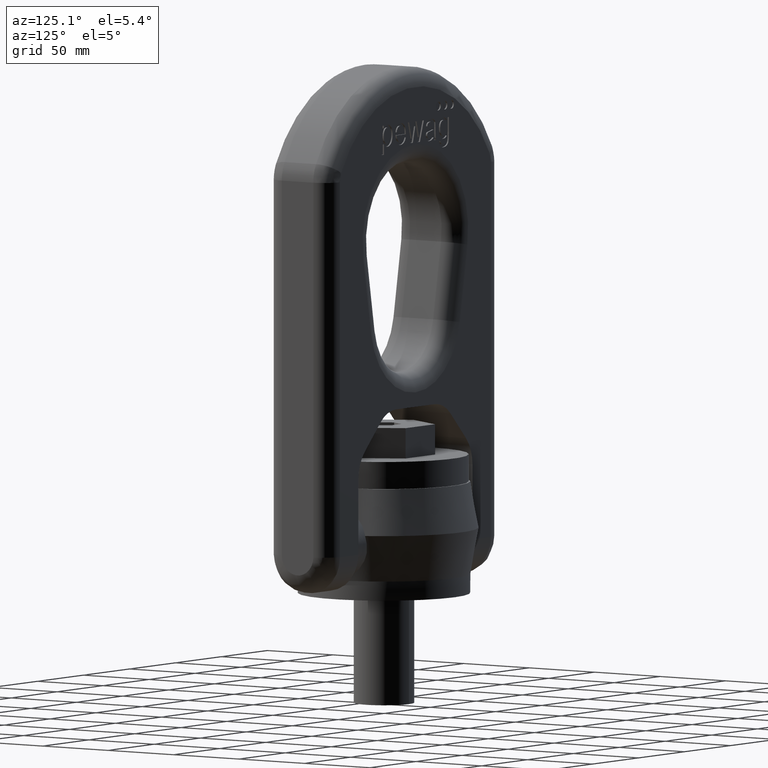
[diagram: clean part render]
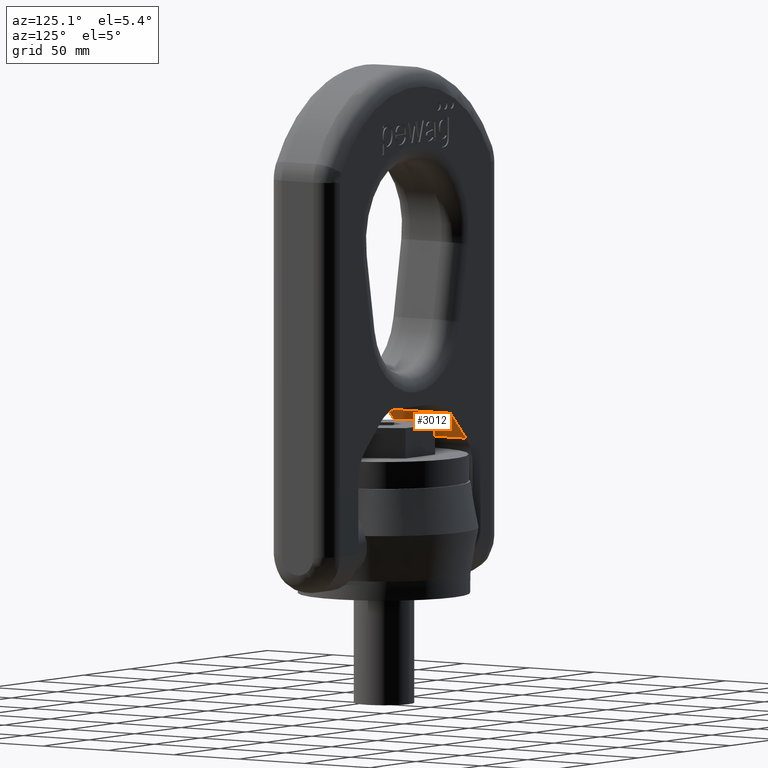
[diagram: same view with one face highlighted and labeled with its STEP entity id]
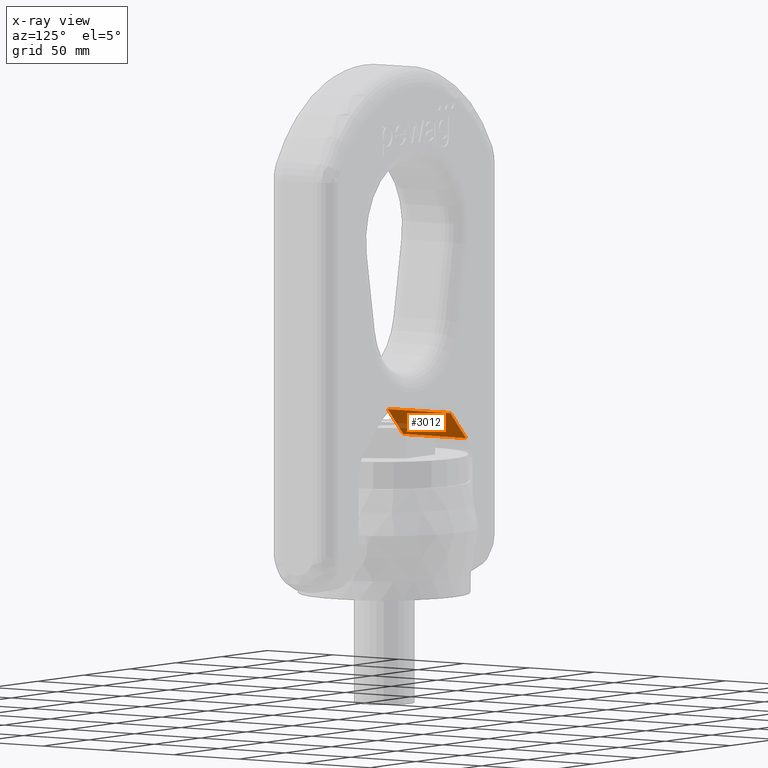
[diagram: x-ray of the same camera — body ghosted, the highlighted face saturated]
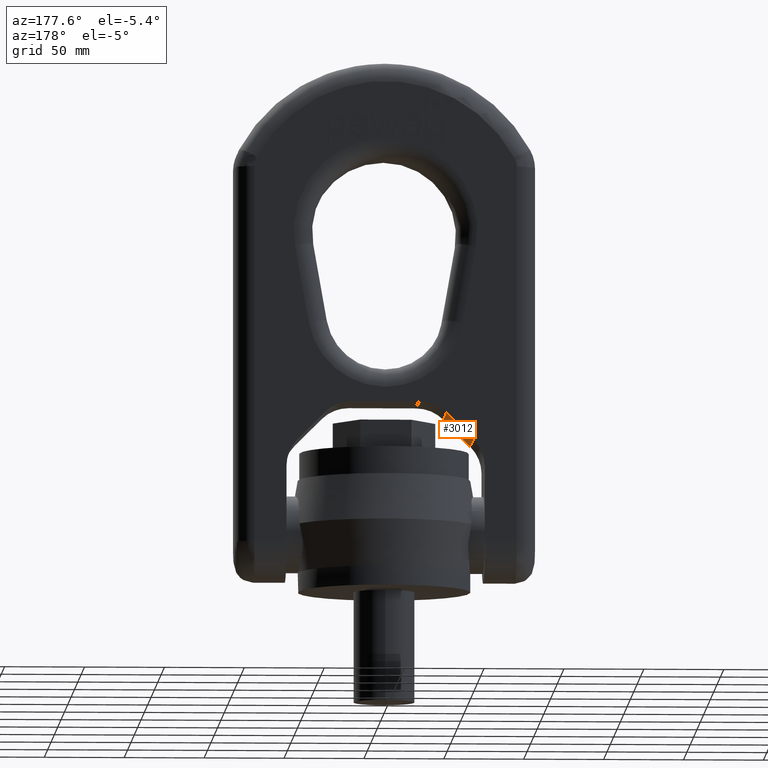
[diagram: same view with one face highlighted and labeled with its STEP entity id]
A machine part, auxiliary view. The second image highlights one B-rep face of the part: STEP entity #3012.
The next image is the same camera in x-ray: the body ghosted, the highlighted face saturated — about 23% of this face is hidden behind the body in this view.
A second angle (auxiliary view) of the same face is appended — the face is thin or edge-on in the first view.
In plain terms, the highlighted planar face has unit normal (0.7071, 0, -0.7071).
Its self-contained STEP definition (entity closure, byte-faithful):
#1779=LINE('',#7089,#2087);
#1821=LINE('',#7419,#2129);
#2035=LINE('',#9701,#2433);
#2036=LINE('',#9702,#2434);
#2087=VECTOR('',#6210,1.);
#2129=VECTOR('',#6278,1.);
#2433=VECTOR('',#6842,1.);
#2434=VECTOR('',#6843,1.);
#2638=FACE_OUTER_BOUND('',#3404,.T.);
#2785=PLANE('',#6018);
#3012=ADVANCED_FACE('',(#2638),#2785,.T.);
#3404=EDGE_LOOP('',(#4585,#4586,#4587,#4588));
#4585=ORIENTED_EDGE('',*,*,#5187,.F.);
#4586=ORIENTED_EDGE('',*,*,#5723,.T.);
#4587=ORIENTED_EDGE('',*,*,#5275,.F.);
#4588=ORIENTED_EDGE('',*,*,#5724,.T.);
#4751=VERTEX_POINT('',#7088);
#4752=VERTEX_POINT('',#7090);
#4838=VERTEX_POINT('',#7418);
#4839=VERTEX_POINT('',#7420);
#5187=EDGE_CURVE('',#4751,#4752,#1779,.T.);
#5275=EDGE_CURVE('',#4838,#4839,#1821,.T.);
#5723=EDGE_CURVE('',#4751,#4839,#2035,.T.);
#5724=EDGE_CURVE('',#4838,#4752,#2036,.T.);
#6018=AXIS2_PLACEMENT_3D('',#9703,#6844,#6845);
#6210=DIRECTION('',(0.707106781186548,0.,0.707106781186547));
#6278=DIRECTION('',(-0.707106781186548,1.65668806430733E-15,-0.707106781186547));
#6842=DIRECTION('',(0.,1.,0.));
#6843=DIRECTION('',(0.,-1.,0.));
#6844=DIRECTION('',(0.707106781186547,0.,-0.707106781186548));
#6845=DIRECTION('',(-0.707106781186548,0.,-0.707106781186547));
#7088=CARTESIAN_POINT('',(-55.0105627484771,-24.,94.0294372515229));
#7089=CARTESIAN_POINT('',(39.1633333333334,-24.,188.203333333333));
#7090=CARTESIAN_POINT('',(-38.0694372515228,-24.,110.970562748477));
#7418=CARTESIAN_POINT('',(-38.0694372515228,24.0000000000001,110.970562748477));
#7419=CARTESIAN_POINT('',(39.1633333333334,23.9999999999999,188.203333333333));
#7420=CARTESIAN_POINT('',(-55.0105627484771,24.0000000000001,94.0294372515229));
#9701=CARTESIAN_POINT('',(-55.0105627484771,24.0000000000001,94.0294372515229));
#9702=CARTESIAN_POINT('',(-38.0694372515228,-24.,110.970562748477));
#9703=CARTESIAN_POINT('',(-31.0399999999999,-65.0248306846,118.));